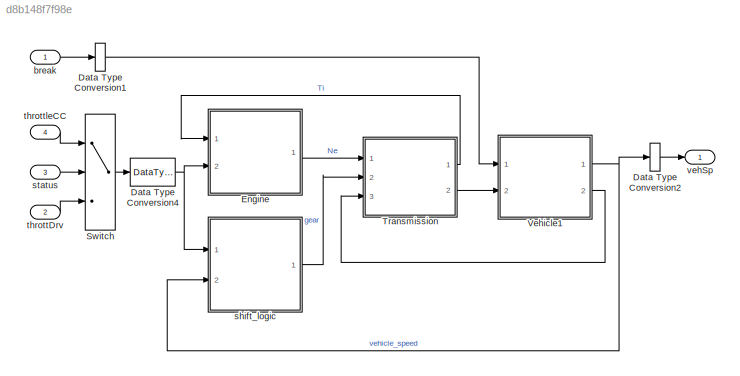
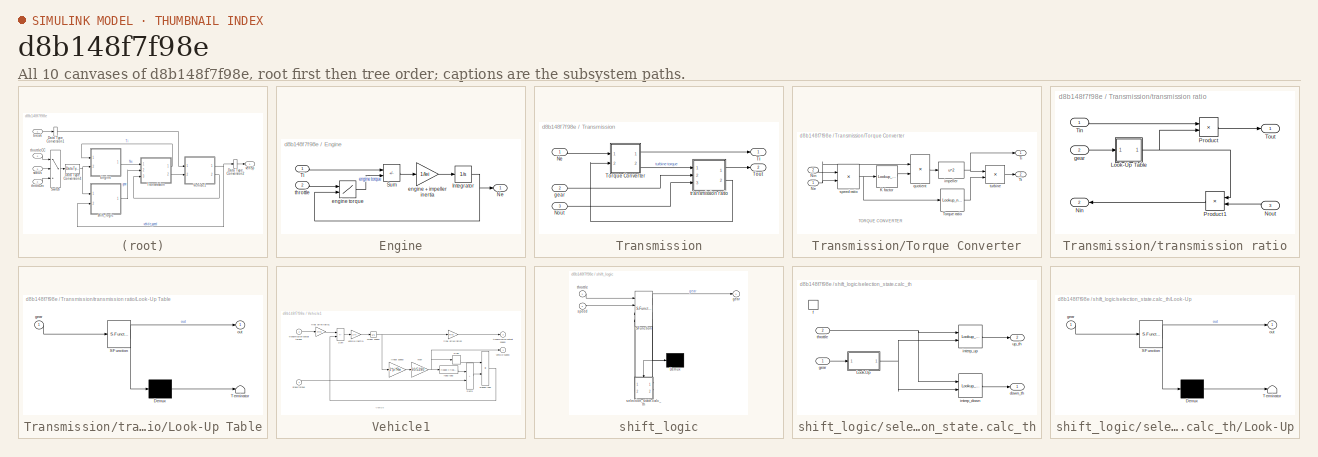
[diagram: thumbnail index - all 10 canvases of the model, root first then tree order]
MODEL slx_d8b148f7f98e
KIND model
CONFIG AbsTol = auto
CONFIG EnableMultiTasking = on
CONFIG FixedStep = Ts
CONFIG MaxStep = auto
CONFIG MinStep = auto
CONFIG RelTol = 1e-3
CONFIG SampleTimeConstraint = Unconstrained
CONFIG SolverName = ode45
CONFIG StartTime = 0.0
CONFIG StopTime = 80
WORKSPACE source: mxarray member
WORKSPACE Iei = 0.0219914882836
WORKSPACE converter_data = [0 0.1 0.2 0.3 0.4 0.5 0.6 0.7 0.8 0.81 0.82 0.83 ... (63 elements, 21x3)]
WORKSPACE emap = [-40 215 245 264 264 267 267 267 267 267 -44 117 ... (110 elements, 10x11)]
WORKSPACE nevec = [800 1200 1600 2000 2400 2800 3200 3600 4000 4400 4800]
WORKSPACE p0 = 0.07934
WORKSPACE p1 = 0.07934
WORKSPACE thvec = [0 20 30 40 50 60 70 80 90 100]
WORKSPACE vehicledata = [3.23 40 0.3 1 50 0]
BLOCK [DataTypeConversion] Data Type Conversion1
  RndMeth = Floor
  SaturateOnIntegerOverflow = off
BLOCK [DataTypeConversion] Data Type Conversion2
  RndMeth = Floor
  SaturateOnIntegerOverflow = off
BLOCK [DataTypeConversion] Data Type Conversion4
  OutDataTypeStr = double
  RndMeth = Floor
  SaturateOnIntegerOverflow = off
BLOCK [SubSystem] Engine
  Ports = [2, 1]
  RequestExecContextInheritance = off
BLOCK [Integrator] Engine/Integrator
  IgnoreLimit = on
  InitialCondition = 1000
  LimitOutput = on
  LowerSaturationLimit = 600
  Ports = [1, 1]
  UpperSaturationLimit = 6000
BLOCK [Outport] Engine/Ne
  InitialOutput = 0
  VectorParamsAs1DForOutWhenUnconnected = off
BLOCK [Sum] Engine/Sum
  IconShape = rectangular
  InputSameDT = on
  Inputs = -+
  OutDataTypeStr = Inherit: Same as first input
  Ports = [2, 1]
  SaturateOnIntegerOverflow = on
BLOCK [Inport] Engine/Ti
BLOCK [Gain] Engine/engine + impeller inertia
  Gain = 1/Iei
  OutDataTypeStr = Inherit: Same as input
  ParamDataTypeStr = Inherit: Same as input
  SaturateOnIntegerOverflow = on
BLOCK [Lookup2D] Engine/engine torque
  ColumnIndex = nevec
  RowIndex = thvec*0.3
  SaturateOnIntegerOverflow = off
  Table = emap
BLOCK [Inport] Engine/throttle
  Port = 2
BLOCK [Switch] Switch
  Criteria = u2 ~= 0
  InputSameDT = off
  SaturateOnIntegerOverflow = off
BLOCK [SubSystem] Transmission
  Ports = [3, 2]
  RequestExecContextInheritance = off
BLOCK [Inport] Transmission/Ne
BLOCK [Inport] Transmission/Nout
  Port = 3
BLOCK [Outport] Transmission/Ti
  VectorParamsAs1DForOutWhenUnconnected = off
BLOCK [SubSystem] Transmission/Torque Converter
  Ports = [2, 2]
  RequestExecContextInheritance = off
  ShowPortLabels = none
BLOCK [Lookup_n-D] Transmission/Torque Converter/K factor
  BreakpointsForDimension1 = speedratio
  InputPortMap = u0
  InternalRulePriority = Speed
  NumberOfTableDimensions = 1
  Ports = [1, 1]
  SaturateOnIntegerOverflow = on
  Table = Kfactor
BLOCK [Inport] Transmission/Torque Converter/Ne
BLOCK [Inport] Transmission/Torque Converter/Nin
  NameLocation = top
  Port = 2
BLOCK [Outport] Transmission/Torque Converter/Ti
  VectorParamsAs1DForOutWhenUnconnected = off
BLOCK [Lookup_n-D] Transmission/Torque Converter/Torque ratio
  BreakpointsForDimension1 = speedratio
  InputPortMap = u0
  InternalRulePriority = Speed
  NumberOfTableDimensions = 1
  Ports = [1, 1]
  SaturateOnIntegerOverflow = on
  Table = Torkratio
BLOCK [Outport] Transmission/Torque Converter/Tt
  Port = 2
  VectorParamsAs1DForOutWhenUnconnected = off
BLOCK [Fcn] Transmission/Torque Converter/impeller
  Expr = u^2
BLOCK [Product] Transmission/Torque Converter/quotient
  InputSameDT = on
  Inputs = */
  OutDataTypeStr = Inherit: Same as first input
  Ports = [2, 1]
  SaturateOnIntegerOverflow = on
BLOCK [Product] Transmission/Torque Converter/speed ratio
  InputSameDT = on
  Inputs = */
  OutDataTypeStr = Inherit: Same as first input
  Ports = [2, 1]
  SaturateOnIntegerOverflow = on
BLOCK [Product] Transmission/Torque Converter/turbine
  InputSameDT = on
  OutDataTypeStr = Inherit: Same as first input
  Ports = [2, 1]
  SaturateOnIntegerOverflow = on
BLOCK [Outport] Transmission/Tout
  Port = 2
  VectorParamsAs1DForOutWhenUnconnected = off
BLOCK [Inport] Transmission/gear
  Port = 2
BLOCK [SubSystem] Transmission/transmission ratio
  Ports = [3, 2]
  RequestExecContextInheritance = off
BLOCK [SubSystem] Transmission/transmission ratio/Look-Up Table
  ErrorFcn = Stateflow.Translate.translate
  PermitHierarchicalResolution = ExplicitOnly
  Ports = [1, 1]
  RequestExecContextInheritance = off
  SFBlockType = MATLAB Function
  TreatAsAtomicUnit = on
BLOCK [Demux] Transmission/transmission ratio/Look-Up Table/ Demux 
  Outputs = 1
  Ports = [1, 1]
BLOCK [S-Function] Transmission/transmission ratio/Look-Up Table/ SFunction 
  EnableBusSupport = on
  FunctionName = sf_sfun
  PortCounts = [1 2]
  Ports = [1, 2]
  SFcnIsStateOwnerBlock = off
  SFunctionDeploymentMode = off
  Tag = Stateflow S-Function 4
BLOCK [Terminator] Transmission/transmission ratio/Look-Up Table/ Terminator 
BLOCK [Inport] Transmission/transmission ratio/Look-Up Table/gear
BLOCK [Outport] Transmission/transmission ratio/Look-Up Table/out
  VectorParamsAs1DForOutWhenUnconnected = off
BLOCK [Outport] Transmission/transmission ratio/Nin
  Port = 2
  VectorParamsAs1DForOutWhenUnconnected = off
BLOCK [Inport] Transmission/transmission ratio/Nout
  Port = 3
BLOCK [Product] Transmission/transmission ratio/Product
  InputSameDT = on
  OutDataTypeStr = Inherit: Same as first input
  Ports = [2, 1]
  SaturateOnIntegerOverflow = on
BLOCK [Product] Transmission/transmission ratio/Product1
  InputSameDT = on
  OutDataTypeStr = Inherit: Same as first input
  Ports = [2, 1]
  SaturateOnIntegerOverflow = on
BLOCK [Inport] Transmission/transmission ratio/Tin
BLOCK [Outport] Transmission/transmission ratio/Tout
  VectorParamsAs1DForOutWhenUnconnected = off
BLOCK [Inport] Transmission/transmission ratio/gear
  Port = 2
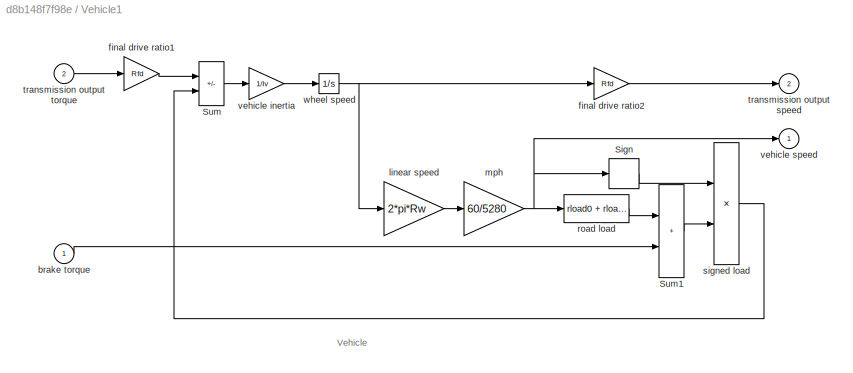
BLOCK [SubSystem] Vehicle1
  Ports = [2, 2]
  RequestExecContextInheritance = off
  ShowPortLabels = none
BLOCK [Signum] Vehicle1/Sign
BLOCK [Sum] Vehicle1/Sum
  IconShape = rectangular
  InputSameDT = on
  Inputs = +-
  OutDataTypeStr = Inherit: Same as first input
  Ports = [2, 1]
  SaturateOnIntegerOverflow = on
BLOCK [Sum] Vehicle1/Sum1
  IconShape = rectangular
  InputSameDT = on
  OutDataTypeStr = Inherit: Same as first input
  Ports = [2, 1]
  SaturateOnIntegerOverflow = on
BLOCK [Inport] Vehicle1/brake torque
BLOCK [Gain] Vehicle1/final drive ratio1
  Gain = Rfd
  OutDataTypeStr = Inherit: Same as input
  ParamDataTypeStr = Inherit: Same as input
  SaturateOnIntegerOverflow = on
BLOCK [Gain] Vehicle1/final drive ratio2
  Gain = Rfd
  OutDataTypeStr = Inherit: Same as input
  ParamDataTypeStr = Inherit: Same as input
  SaturateOnIntegerOverflow = on
BLOCK [Gain] Vehicle1/linear speed
  Gain = 2*pi*Rw
  NameLocation = top
  OutDataTypeStr = Inherit: Same as input
  ParamDataTypeStr = Inherit: Same as input
  SaturateOnIntegerOverflow = on
BLOCK [Gain] Vehicle1/mph
  Gain = 60/5280
  NameLocation = top
  OutDataTypeStr = Inherit: Same as input
  ParamDataTypeStr = Inherit: Same as input
  SaturateOnIntegerOverflow = on
BLOCK [Fcn] Vehicle1/road load
  Expr = rload0 + rload2*u^2
BLOCK [Product] Vehicle1/signed load
  InputSameDT = on
  OutDataTypeStr = Inherit: Same as first input
  Ports = [2, 1]
  SaturateOnIntegerOverflow = on
BLOCK [Outport] Vehicle1/transmission output speed
  Port = 2
  VectorParamsAs1DForOutWhenUnconnected = off
BLOCK [Inport] Vehicle1/transmission output torque
  Port = 2
BLOCK [Gain] Vehicle1/vehicle inertia
  Gain = 1/Iv
  OutDataTypeStr = Inherit: Same as input
  ParamDataTypeStr = Inherit: Same as input
  SaturateOnIntegerOverflow = on
BLOCK [Outport] Vehicle1/vehicle speed
  VectorParamsAs1DForOutWhenUnconnected = off
BLOCK [Integrator] Vehicle1/wheel speed
  InitialCondition = N20/Rfd
  Ports = [1, 1]
  ZeroCross = off
BLOCK [Inport] break
BLOCK [SubSystem] shift_logic
  ErrorFcn = Stateflow.Translate.translate
  PermitHierarchicalResolution = ExplicitOnly
  Ports = [2, 1]
  RequestExecContextInheritance = off
  SFBlockType = Chart
  TreatAsAtomicUnit = on
BLOCK [Demux] shift_logic/ Demux 
  Outputs = 1
  Ports = [1, 1]
BLOCK [S-Function] shift_logic/ SFunction 
  EnableBusSupport = on
  FunctionName = sf_sfun
  Parameters = TWAIT
  PortCounts = [4 4]
  Ports = [4, 4]
  SFcnIsStateOwnerBlock = off
  SFunctionDeploymentMode = off
  Tag = Stateflow S-Function 1
BLOCK [Outport] shift_logic/ gear
  VectorParamsAs1DForOutWhenUnconnected = off
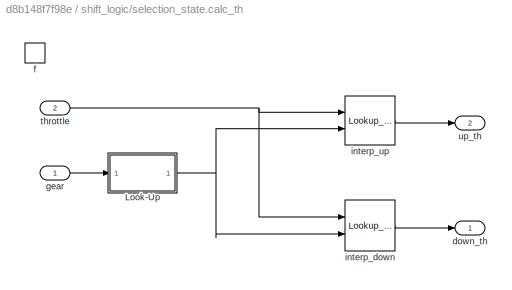
BLOCK [SubSystem] shift_logic/selection_state.calc_th
  Ports = [2, 2, 0, 1]
  PreDeleteFcn = Stateflow.SLINSF.SimulinkMan.removePreDeleteFcn
  RequestExecContextInheritance = off
  UndoDeleteFcn = Stateflow.SLINSF.SimulinkMan.restorePreDeleteFcn
BLOCK [SubSystem] shift_logic/selection_state.calc_th/Look-Up
  ErrorFcn = Stateflow.Translate.translate
  PermitHierarchicalResolution = ExplicitOnly
  Ports = [1, 1]
  RequestExecContextInheritance = off
  SFBlockType = MATLAB Function
  TreatAsAtomicUnit = on
BLOCK [Demux] shift_logic/selection_state.calc_th/Look-Up/ Demux 
  Outputs = 1
  Ports = [1, 1]
BLOCK [S-Function] shift_logic/selection_state.calc_th/Look-Up/ SFunction 
  EnableBusSupport = off
  FunctionName = sf_sfun
  PortCounts = [1 2]
  Ports = [1, 2]
  SFcnIsStateOwnerBlock = off
  SFunctionDeploymentMode = off
  Tag = Stateflow S-Function 2
BLOCK [Terminator] shift_logic/selection_state.calc_th/Look-Up/ Terminator 
BLOCK [Inport] shift_logic/selection_state.calc_th/Look-Up/gear
BLOCK [Outport] shift_logic/selection_state.calc_th/Look-Up/out
  VectorParamsAs1DForOutWhenUnconnected = off
BLOCK [Outport] shift_logic/selection_state.calc_th/down_th
  VectorParamsAs1DForOutWhenUnconnected = off
BLOCK [TriggerPort] shift_logic/selection_state.calc_th/f
  CopyFcn = Stateflow.SLINSF.SimulinkMan.removeBlockPreDeleteFcn
  Ports = []
  PreDeleteFcn = Stateflow.SLINSF.SimulinkMan.unsafePredeleteFcn
  StatesWhenEnabling = held
  TriggerType = function-call
  VariantControl = Variant
BLOCK [Inport] shift_logic/selection_state.calc_th/gear
  OutDataTypeStr = Enum: gearType
  PortDimensions = 1
  SignalType = real
BLOCK [Lookup_n-D] shift_logic/selection_state.calc_th/interp_down
  BreakpointsForDimension1 = downth
  BreakpointsForDimension2 = [1:4]
  InputPortMap = u0,u1
  Ports = [2, 1]
  Table = downtab
BLOCK [Lookup_n-D] shift_logic/selection_state.calc_th/interp_up
  BreakpointsForDimension1 = upth
  BreakpointsForDimension2 = [1:4]
  InputPortMap = u0,u1
  Ports = [2, 1]
  Table = uptab
BLOCK [Inport] shift_logic/selection_state.calc_th/throttle
  OutDataTypeStr = double
  Port = 2
  PortDimensions = 1
  SignalType = real
BLOCK [Outport] shift_logic/selection_state.calc_th/up_th
  Port = 2
  VectorParamsAs1DForOutWhenUnconnected = off
BLOCK [Inport] shift_logic/speed
  Port = 2
BLOCK [Inport] shift_logic/throttle
BLOCK [Inport] status
  OutDataTypeStr = boolean
  Port = 3
BLOCK [Inport] throttDrv
  Port = 2
BLOCK [Inport] throttleCC
  Port = 4
BLOCK [Outport] vehSp
  VectorParamsAs1DForOutWhenUnconnected = off
ANNOTATION Transmission/Torque Converter: TORQUE CONVERTER
ANNOTATION Vehicle1: Vehicle
LINE Data Type Conversion1:1 -> Vehicle1:1
LINE Data Type Conversion2:1 -> vehSp:1
NET Data Type Conversion4:1 -> Engine:2, shift_logic:1
NET Engine/Integrator:1 -> Engine/Ne:1, Engine/engine torque:2
LINE Engine/Sum:1 -> Engine/engine + impeller inertia:1
LINE Engine/Ti:1 -> Engine/Sum:1
LINE Engine/engine + impeller inertia:1 -> Engine/Integrator:1
LINE Engine/engine torque:1 -> Engine/Sum:2
LINE Engine/throttle:1 -> Engine/engine torque:1
LINE Engine:1 -> Transmission:1
LINE Switch:1 -> Data Type Conversion4:1
LINE Transmission/Ne:1 -> Transmission/Torque Converter:1
LINE Transmission/Nout:1 -> Transmission/transmission ratio:3
LINE Transmission/Torque Converter/K factor:1 -> Transmission/Torque Converter/quotient:2
NET Transmission/Torque Converter/Ne:1 -> Transmission/Torque Converter/quotient:1, Transmission/Torque Converter/speed ratio:2
LINE Transmission/Torque Converter/Nin:1 -> Transmission/Torque Converter/speed ratio:1
LINE Transmission/Torque Converter/Torque ratio:1 -> Transmission/Torque Converter/turbine:2
NET Transmission/Torque Converter/impeller:1 -> Transmission/Torque Converter/Ti:1, Transmission/Torque Converter/turbine:1
LINE Transmission/Torque Converter/quotient:1 -> Transmission/Torque Converter/impeller:1
NET Transmission/Torque Converter/speed ratio:1 -> Transmission/Torque Converter/K factor:1, Transmission/Torque Converter/Torque ratio:1
LINE Transmission/Torque Converter/turbine:1 -> Transmission/Torque Converter/Tt:1
LINE Transmission/Torque Converter:1 -> Transmission/Ti:1
LINE Transmission/Torque Converter:2 -> Transmission/transmission ratio:1
LINE Transmission/gear:1 -> Transmission/transmission ratio:2
NET Transmission/transmission ratio/Look-Up Table:1 -> Transmission/transmission ratio/Product1:1, Transmission/transmission ratio/Product:2
LINE Transmission/transmission ratio/Nout:1 -> Transmission/transmission ratio/Product1:2
LINE Transmission/transmission ratio/Product1:1 -> Transmission/transmission ratio/Nin:1
LINE Transmission/transmission ratio/Product:1 -> Transmission/transmission ratio/Tout:1
LINE Transmission/transmission ratio/Tin:1 -> Transmission/transmission ratio/Product:1
LINE Transmission/transmission ratio/gear:1 -> Transmission/transmission ratio/Look-Up Table:1
LINE Transmission/transmission ratio:1 -> Transmission/Tout:1
LINE Transmission/transmission ratio:2 -> Transmission/Torque Converter:2
LINE Transmission:1 -> Engine:1
LINE Transmission:2 -> Vehicle1:2
LINE Vehicle1/Sign:1 -> Vehicle1/signed load:1
LINE Vehicle1/Sum1:1 -> Vehicle1/signed load:2
LINE Vehicle1/Sum:1 -> Vehicle1/vehicle inertia:1
LINE Vehicle1/brake torque:1 -> Vehicle1/Sum1:2
LINE Vehicle1/final drive ratio1:1 -> Vehicle1/Sum:1
LINE Vehicle1/final drive ratio2:1 -> Vehicle1/transmission output speed:1
LINE Vehicle1/linear speed:1 -> Vehicle1/mph:1
NET Vehicle1/mph:1 -> Vehicle1/Sign:1, Vehicle1/road load:1, Vehicle1/vehicle speed:1
LINE Vehicle1/road load:1 -> Vehicle1/Sum1:1
LINE Vehicle1/signed load:1 -> Vehicle1/Sum:2
LINE Vehicle1/transmission output torque:1 -> Vehicle1/final drive ratio1:1
LINE Vehicle1/vehicle inertia:1 -> Vehicle1/wheel speed:1
NET Vehicle1/wheel speed:1 -> Vehicle1/final drive ratio2:1, Vehicle1/linear speed:1
NET Vehicle1:1 -> Data Type Conversion2:1, shift_logic:2
LINE Vehicle1:2 -> Transmission:3
LINE break:1 -> Data Type Conversion1:1
LINE shift_logic:1 -> Transmission:2
LINE status:1 -> Switch:2
LINE throttDrv:1 -> Switch:3
LINE throttleCC:1 -> Switch:1
note: NET lines group one-source signal fan-out (src -> all destinations, sorted); 1:1 wires keep LINE
CHART shift_logic states=10 transitions=14
  STATE_LABEL 'gear_state'
  STATE_LABEL 'fourth\n'
  STATE_LABEL 'third\n'
  STATE_LABEL 'second\n'
  STATE_LABEL 'first\n'
  STATE_LABEL 'UP'
  STATE_LABEL 'UP'
  STATE_LABEL 'UP'
  STATE_LABEL 'DOWN'
  STATE_LABEL 'DOWN'
  STATE_LABEL 'DOWN'
  STATE_LABEL 'fourth\n'
  STATE_LABEL 'third\n'
  STATE_LABEL 'second\n'
  STATE_LABEL 'first\n'
  STATE_LABEL 'selection_state\nduring: [down_th,up_th] = calc_th(gear,throttle);'
  STATE_LABEL 'steady_state'
  STATE_LABEL 'upshifting'
  STATE_LABEL 'downshifting'
  STATE_LABEL '[down_th,up_th] = calc_th(gear,throttle)'
  STATE_LABEL '[speed > up_th]'
  STATE_LABEL '[speed < down_th]'
  STATE_LABEL 'after(TWAIT,tick)\n[speed <= down_th]\n{send(gear_state.DOWN)}'
  STATE_LABEL '[speed > down_th]'
  STATE_LABEL 'after(TWAIT,tick)\n[speed >= up_th]\n{send(gear_state.UP)}'
  STATE_LABEL '[speed < up_th]'
  STATE_LABEL 'steady_state'
  STATE_LABEL 'upshifting'
  STATE_LABEL 'downshifting'
  STATE_LABEL '[down_th,up_th] = calc_th(gear,throttle)'
CHART shift_logic/selection_state.calc_th/Look-Up states=1 transitions=1
  STATE_LABEL 'eML_blk_kernel()'
  STATE_LABEL 'SCRIPT:\nfunction out = fcn(gear)\n    %#codegen\n    table = [1 2 3 4];\n    switch(gear)\n        case gearType.fourth;\n            out=table(4);        \n        case gearType.third;\n            out=table(3);\n        case gearType.second;\n            out=table(2);            \n        otherwise; % gearType.first\n            out=table(1);\n    end\n    \nend\n'
CHART Transmission/transmission
ratio/Look-Up
Table states=1 transitions=1
  STATE_LABEL 'eML_blk_kernel()'
  STATE_LABEL 'SCRIPT:\nfunction out = fcn(gear)\n    %#codegen\n    table = [4 3 2 1];\n    switch(gear)\n        case gearType.fourth;\n            out=table(4);        \n        case gearType.third;\n            out=table(3);            \n        case gearType.second;\n            out=table(2);\n        otherwise; % gearType.first\n            out=table(1);\n    end\n    \nend\n'
CHART  states=0 transitions=0
CHART  states=0 transitions=0
CHART  states=0 transitions=0
